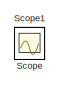
[diagram: root canvas - part 1/2, top left region]
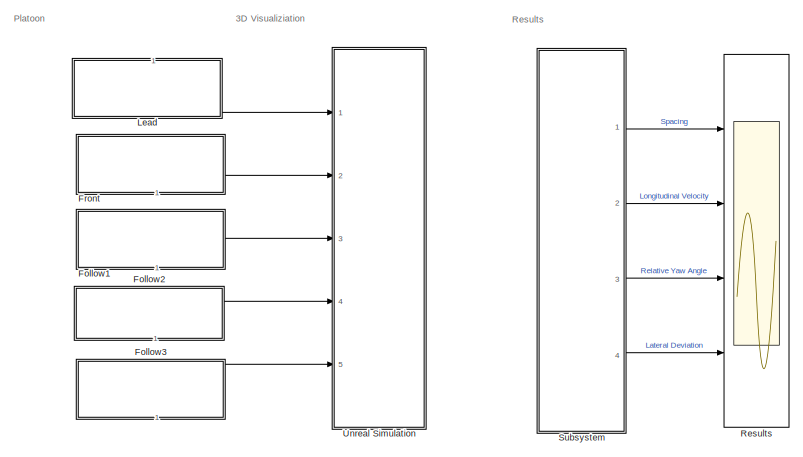
[diagram: root canvas - part 2/2, bottom right region]
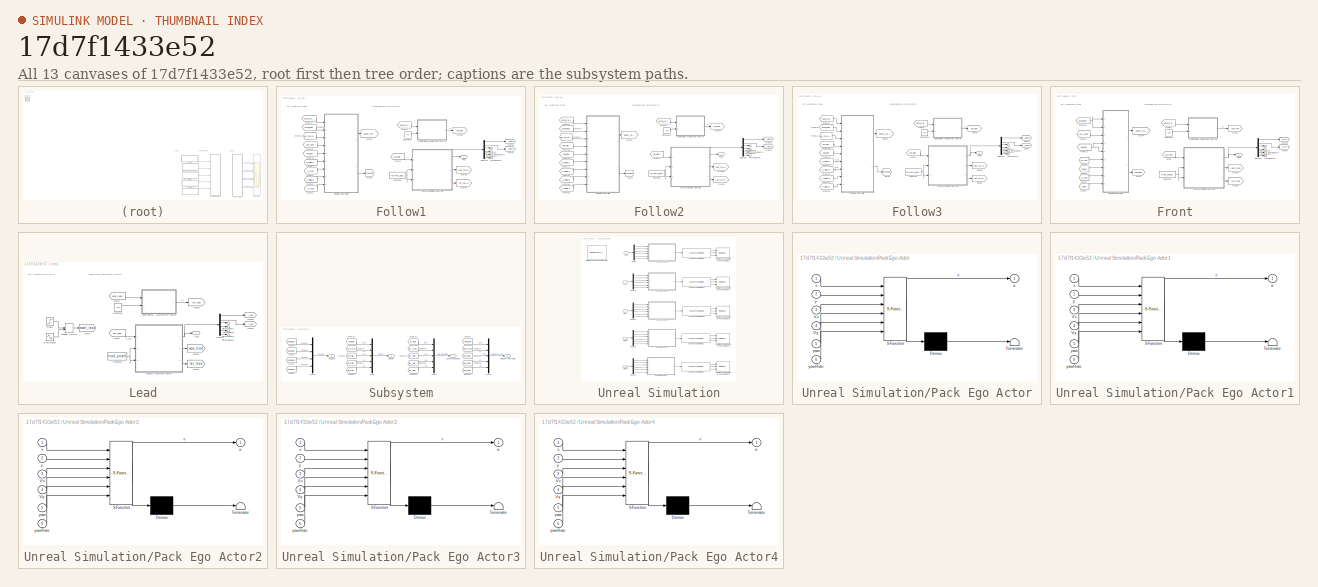
[diagram: thumbnail index - all 13 canvases of the model, root first then tree order]
MODEL slx_17d7f1433e52
KIND model
CONFIG AbsTol = auto
CONFIG EnableMultiTasking = off
CONFIG FixedStep = auto
CONFIG MaxStep = auto
CONFIG MinStep = auto
CONFIG RelTol = 1e-3
CONFIG SampleTimeConstraint = Unconstrained
CONFIG SolverName = FixedStepAuto
CONFIG StartTime = 0.0
CONFIG StopTime = 14
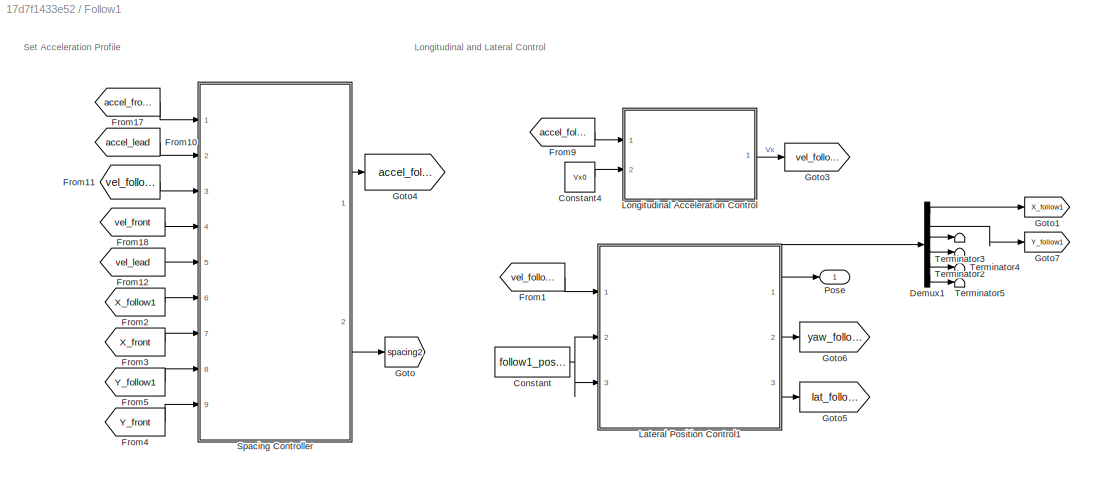
BLOCK [SubSystem] Follow1
  NameLocation = left
  PortSchema = {"entries":[{"content":{"sides":[{"content":{"connectorIds":[]},"type":"ConnectorPlacement.EquallySpacedRectSide","uuid":"e54d76f8-8c49-4840-b6a9-58e08104dcc1"},{"content":{"connectorIds":[],"side":"RIGHT"},"type":"ConnectorPlacement.EquallySpacedRectSide","uuid":"16d97aed-590d-4da6-9d09-35159b7cd9d4"},{"content":{"connectorIds":["Out1"],"side":"TOP"},"type":"ConnectorPlacement.EquallySpacedRectSi...<+235ch>  <repeated x4 — deduplicated; at blocks: Follow1, Follow3, Front, Lead>
  Ports = [0, 1]
  RequestExecContextInheritance = off
BLOCK [Constant] Follow1/Constant
  Value = follow1_pose0
BLOCK [Constant] Follow1/Constant4
  Value = Vx0
BLOCK [Demux] Follow1/Demux1
  Outputs = 6
  Ports = [1, 6]
BLOCK [From] Follow1/From1
  GotoTag = vel_follow1
  TagVisibility = global
BLOCK [From] Follow1/From10
  GotoTag = accel_lead
  TagVisibility = global
BLOCK [From] Follow1/From11
  GotoTag = vel_follow1
  TagVisibility = global
BLOCK [From] Follow1/From12
  GotoTag = vel_lead
  TagVisibility = global
BLOCK [From] Follow1/From17
  GotoTag = accel_front
  TagVisibility = global
BLOCK [From] Follow1/From18
  GotoTag = vel_front
  TagVisibility = global
BLOCK [From] Follow1/From2
  GotoTag = X_follow1
  TagVisibility = global
BLOCK [From] Follow1/From3
  GotoTag = X_front
  TagVisibility = global
BLOCK [From] Follow1/From4
  GotoTag = Y_front
  TagVisibility = global
BLOCK [From] Follow1/From5
  GotoTag = Y_follow1
  TagVisibility = global
BLOCK [From] Follow1/From9
  GotoTag = accel_follow1
  TagVisibility = global
BLOCK [Goto] Follow1/Goto
  GotoTag = spacing2
  TagVisibility = global
BLOCK [Goto] Follow1/Goto1
  GotoTag = X_follow1
  TagVisibility = global
BLOCK [Goto] Follow1/Goto3
  GotoTag = vel_follow1
  TagVisibility = global
BLOCK [Goto] Follow1/Goto4
  GotoTag = accel_follow1
  TagVisibility = global
BLOCK [Goto] Follow1/Goto5
  GotoTag = lat_follow1
  TagVisibility = global
BLOCK [Goto] Follow1/Goto6
  GotoTag = yaw_follow1
  TagVisibility = global
BLOCK [Goto] Follow1/Goto7
  GotoTag = Y_follow1
  TagVisibility = global
BLOCK [SubSystem] Follow1/Lateral Position Control1
  PortSchema = {"entries":[{"content":{"sides":[{"content":{"connectorIds":["In1","In2","In3"]},"type":"ConnectorPlacement.EquallySpacedRectSide","uuid":"be29c3cb-f330-4838-b745-538466c19ec8"},{"content":{"connectorIds":["Out1","Out3","Out2"],"side":"RIGHT"},"type":"ConnectorPlacement.EquallySpacedRectSide","uuid":"f85912df-f35d-4388-8854-cabd9b7a9775"},{"content":{"connectorIds":[],"side":"TOP"},"type":"Connect...<+266ch>  <repeated x5 — deduplicated; at blocks: Lateral Position Control1, Lateral Position Control>
  Ports = [3, 3]
  ReferencedSubsystem = Lateral_Position_Control
  RequestExecContextInheritance = off
BLOCK [SubSystem] Follow1/Longitudinal Acceleration Control
  Ports = [2, 1]
  ReferencedSubsystem = Longitudinal_Acceleration_Control
  RequestExecContextInheritance = off
BLOCK [Outport] Follow1/Pose
BLOCK [SubSystem] Follow1/Spacing Controller
  Ports = [9, 2]
  ReferencedSubsystem = spacing_controller
  RequestExecContextInheritance = off
BLOCK [Terminator] Follow1/Terminator2
BLOCK [Terminator] Follow1/Terminator3
BLOCK [Terminator] Follow1/Terminator4
BLOCK [Terminator] Follow1/Terminator5
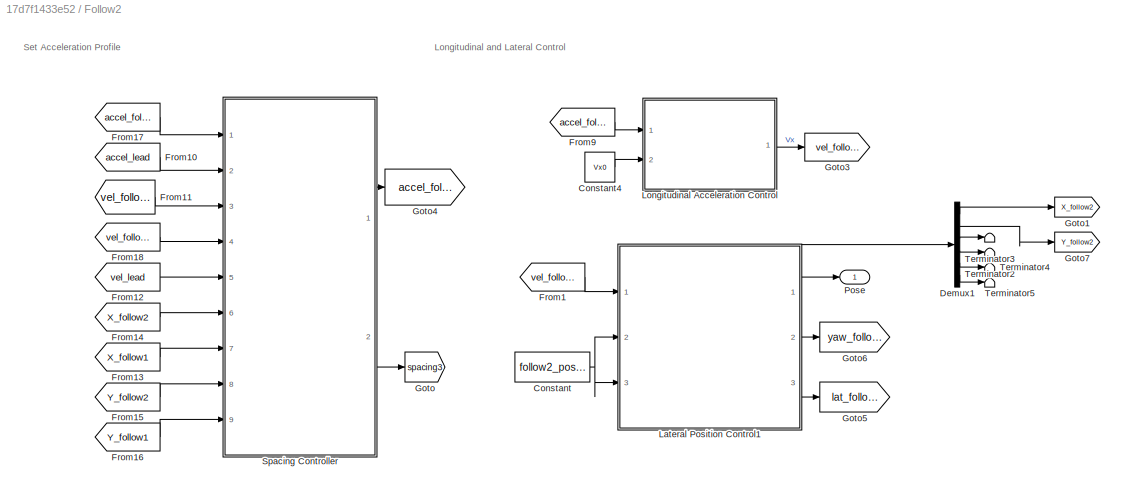
BLOCK [SubSystem] Follow2
  NameLocation = left
  PortSchema = {"entries":[{"content":{"sides":[{"content":{"connectorIds":[]},"type":"ConnectorPlacement.EquallySpacedRectSide","uuid":"06893071-ec21-4ffc-a054-06bfa92a0eac"},{"content":{"connectorIds":[],"side":"RIGHT"},"type":"ConnectorPlacement.EquallySpacedRectSide","uuid":"1cbc90e1-f519-4952-8f8a-3c170042a637"},{"content":{"connectorIds":["Out1"],"side":"TOP"},"type":"ConnectorPlacement.EquallySpacedRectSi...<+235ch>
  Ports = [0, 1]
  RequestExecContextInheritance = off
BLOCK [Constant] Follow2/Constant
  Value = follow2_pose0
BLOCK [Constant] Follow2/Constant4
  Value = Vx0
BLOCK [Demux] Follow2/Demux1
  Outputs = 6
  Ports = [1, 6]
BLOCK [From] Follow2/From1
  GotoTag = vel_follow2
  TagVisibility = global
BLOCK [From] Follow2/From10
  GotoTag = accel_lead
  TagVisibility = global
BLOCK [From] Follow2/From11
  GotoTag = vel_follow2
  TagVisibility = global
BLOCK [From] Follow2/From12
  GotoTag = vel_lead
  TagVisibility = global
BLOCK [From] Follow2/From13
  GotoTag = X_follow1
  TagVisibility = global
BLOCK [From] Follow2/From14
  GotoTag = X_follow2
  TagVisibility = global
BLOCK [From] Follow2/From15
  GotoTag = Y_follow2
  TagVisibility = global
BLOCK [From] Follow2/From16
  GotoTag = Y_follow1
  TagVisibility = global
BLOCK [From] Follow2/From17
  GotoTag = accel_follow1
  TagVisibility = global
BLOCK [From] Follow2/From18
  GotoTag = vel_follow1
  TagVisibility = global
BLOCK [From] Follow2/From9
  GotoTag = accel_follow2
  TagVisibility = global
BLOCK [Goto] Follow2/Goto
  GotoTag = spacing3
  TagVisibility = global
BLOCK [Goto] Follow2/Goto1
  GotoTag = X_follow2
  TagVisibility = global
BLOCK [Goto] Follow2/Goto3
  GotoTag = vel_follow2
  TagVisibility = global
BLOCK [Goto] Follow2/Goto4
  GotoTag = accel_follow2
  TagVisibility = global
BLOCK [Goto] Follow2/Goto5
  GotoTag = lat_follow2
  TagVisibility = global
BLOCK [Goto] Follow2/Goto6
  GotoTag = yaw_follow2
  TagVisibility = global
BLOCK [Goto] Follow2/Goto7
  GotoTag = Y_follow2
  TagVisibility = global
BLOCK [SubSystem] Follow2/Lateral Position Control1
  Ports = [3, 3]
  ReferencedSubsystem = Lateral_Position_Control
  RequestExecContextInheritance = off
BLOCK [SubSystem] Follow2/Longitudinal Acceleration Control
  Ports = [2, 1]
  ReferencedSubsystem = Longitudinal_Acceleration_Control
  RequestExecContextInheritance = off
BLOCK [Outport] Follow2/Pose
BLOCK [SubSystem] Follow2/Spacing Controller
  Ports = [9, 2]
  ReferencedSubsystem = spacing_controller
  RequestExecContextInheritance = off
BLOCK [Terminator] Follow2/Terminator2
BLOCK [Terminator] Follow2/Terminator3
BLOCK [Terminator] Follow2/Terminator4
BLOCK [Terminator] Follow2/Terminator5
BLOCK [SubSystem] Follow3
  NameLocation = left
  Ports = [0, 1]
  RequestExecContextInheritance = off
BLOCK [Constant] Follow3/Constant
  Value = follow3_pose0
BLOCK [Constant] Follow3/Constant4
  Value = Vx0
BLOCK [Demux] Follow3/Demux1
  Outputs = 6
  Ports = [1, 6]
BLOCK [From] Follow3/From1
  GotoTag = vel_follow3
  TagVisibility = global
BLOCK [From] Follow3/From10
  GotoTag = accel_lead
  TagVisibility = global
BLOCK [From] Follow3/From11
  GotoTag = vel_follow3
  TagVisibility = global
BLOCK [From] Follow3/From12
  GotoTag = vel_lead
  TagVisibility = global
BLOCK [From] Follow3/From13
  GotoTag = X_follow2
  TagVisibility = global
BLOCK [From] Follow3/From14
  GotoTag = X_follow3
  TagVisibility = global
BLOCK [From] Follow3/From15
  GotoTag = Y_follow3
  TagVisibility = global
BLOCK [From] Follow3/From16
  GotoTag = Y_follow2
  TagVisibility = global
BLOCK [From] Follow3/From17
  GotoTag = accel_follow2
  TagVisibility = global
BLOCK [From] Follow3/From18
  GotoTag = vel_follow2
  TagVisibility = global
BLOCK [From] Follow3/From9
  GotoTag = accel_follow3
  TagVisibility = global
BLOCK [Goto] Follow3/Goto1
  GotoTag = spacing4
  TagVisibility = global
BLOCK [Goto] Follow3/Goto2
  GotoTag = X_follow3
  TagVisibility = global
BLOCK [Goto] Follow3/Goto3
  GotoTag = vel_follow3
  TagVisibility = global
BLOCK [Goto] Follow3/Goto4
  GotoTag = accel_follow3
  TagVisibility = global
BLOCK [Goto] Follow3/Goto5
  GotoTag = lat_follow3
  TagVisibility = global
BLOCK [Goto] Follow3/Goto6
  GotoTag = yaw_follow3
  TagVisibility = global
BLOCK [Goto] Follow3/Goto7
  GotoTag = Y_follow3
  TagVisibility = global
BLOCK [SubSystem] Follow3/Lateral Position Control1
  Ports = [3, 3]
  ReferencedSubsystem = Lateral_Position_Control
  RequestExecContextInheritance = off
BLOCK [SubSystem] Follow3/Longitudinal Acceleration Control
  Ports = [2, 1]
  ReferencedSubsystem = Longitudinal_Acceleration_Control
  RequestExecContextInheritance = off
BLOCK [Outport] Follow3/Pose
BLOCK [SubSystem] Follow3/Spacing Controller
  Ports = [9, 2]
  ReferencedSubsystem = spacing_controller
  RequestExecContextInheritance = off
BLOCK [Terminator] Follow3/Terminator2
BLOCK [Terminator] Follow3/Terminator3
BLOCK [Terminator] Follow3/Terminator4
BLOCK [Terminator] Follow3/Terminator5
BLOCK [SubSystem] Front
  NameLocation = left
  Ports = [0, 1]
  RequestExecContextInheritance = off
BLOCK [Constant] Front/Constant
  Value = front_pose0
BLOCK [Constant] Front/Constant2
  Value = Vx0
BLOCK [Demux] Front/Demux1
  Outputs = 6
  Ports = [1, 6]
BLOCK [From] Front/From
  GotoTag = vel_front
  TagVisibility = global
BLOCK [From] Front/From1
  GotoTag = Y_front
  TagVisibility = global
BLOCK [From] Front/From10
  GotoTag = accel_lead
  TagVisibility = global
BLOCK [From] Front/From11
  GotoTag = vel_front
  TagVisibility = global
BLOCK [From] Front/From12
  GotoTag = vel_lead
  TagVisibility = global
BLOCK [From] Front/From2
  GotoTag = X_front
  TagVisibility = global
BLOCK [From] Front/From3
  GotoTag = X_lead
  TagVisibility = global
BLOCK [From] Front/From4
  GotoTag = Y_lead
  TagVisibility = global
BLOCK [From] Front/From9
  GotoTag = accel_front
  TagVisibility = global
BLOCK [Goto] Front/Goto
  GotoTag = spacing1
  TagVisibility = global
BLOCK [Goto] Front/Goto2
  GotoTag = X_front
  TagVisibility = global
BLOCK [Goto] Front/Goto3
  GotoTag = vel_front
  TagVisibility = global
BLOCK [Goto] Front/Goto4
  GotoTag = accel_front
  TagVisibility = global
BLOCK [Goto] Front/Goto5
  GotoTag = lat_front
  TagVisibility = global
BLOCK [Goto] Front/Goto6
  GotoTag = yaw_front
  TagVisibility = global
BLOCK [Goto] Front/Goto7
  GotoTag = Y_front
  TagVisibility = global
BLOCK [SubSystem] Front/Lateral Position Control1
  Ports = [3, 3]
  ReferencedSubsystem = Lateral_Position_Control
  RequestExecContextInheritance = off
BLOCK [SubSystem] Front/Longitudinal Acceleration Control1
  Ports = [2, 1]
  ReferencedSubsystem = Longitudinal_Acceleration_Control
  RequestExecContextInheritance = off
BLOCK [Outport] Front/Pose
BLOCK [SubSystem] Front/Spacing Controller
  Ports = [9, 2]
  ReferencedSubsystem = spacing_controller
  RequestExecContextInheritance = off
BLOCK [Terminator] Front/Terminator2
BLOCK [Terminator] Front/Terminator3
BLOCK [Terminator] Front/Terminator4
BLOCK [Terminator] Front/Terminator5
BLOCK [SubSystem] Lead
  NameLocation = left
  Ports = [0, 1]
  RequestExecContextInheritance = off
BLOCK [Outport] Lead/Actor
BLOCK [Constant] Lead/Constant
  Value = lead_pose0
BLOCK [Constant] Lead/Constant4
  Value = Vx0
BLOCK [Demux] Lead/Demux
  Outputs = 6
  Ports = [1, 6]
BLOCK [From] Lead/From1
  GotoTag = vel_lead
  TagVisibility = global
BLOCK [From] Lead/From2
  GotoTag = accel_lead
  TagVisibility = global
BLOCK [Goto] Lead/Goto1
  GotoTag = accel_lead
  TagVisibility = global
BLOCK [Goto] Lead/Goto2
  GotoTag = X_lead
  TagVisibility = global
BLOCK [Goto] Lead/Goto3
  GotoTag = vel_lead
  TagVisibility = global
BLOCK [Goto] Lead/Goto4
  GotoTag = Y_lead
  TagVisibility = global
BLOCK [Goto] Lead/Goto5
  GotoTag = lat_lead
  TagVisibility = global
BLOCK [Goto] Lead/Goto6
  GotoTag = yaw_lead
  TagVisibility = global
BLOCK [SubSystem] Lead/Lateral Position Control
  Ports = [3, 3]
  ReferencedSubsystem = Lateral_Position_Control
  RequestExecContextInheritance = off
BLOCK [SubSystem] Lead/Longitudinal Acceleration Control
  Ports = [2, 1]
  ReferencedSubsystem = Longitudinal_Acceleration_Control
  RequestExecContextInheritance = off
BLOCK [ManualSwitch] Lead/Manual Switch
BLOCK [Sin] Lead/Sine Wave1
  Amplitude = amp
  Ports = [0, 1]
  SampleTime = 0
BLOCK [Step] Lead/Step1
  After = 0
  SampleTime = 0
  Time = 0
BLOCK [Terminator] Lead/Terminator
BLOCK [Terminator] Lead/Terminator1
BLOCK [Terminator] Lead/Terminator2
BLOCK [Terminator] Lead/Terminator3
BLOCK [Scope] Results
  Floating = off
  NumInputPorts = 4
  Ports = [4]
  ScopeSpecificationString = Simulink.scopes.TimeScopeBlockCfg('CurrentConfiguration', extmgr.ConfigurationSet(extmgr.Configuration('Core','General UI',true),extmgr.Configuration('Core','Source UI',true),extmgr.Configuration('Sources','WiredSimulink',true,'DataLoggingVariableName','ScopeData3'),extmgr.Configuration('Visuals','Time Domain',true,'SerializedDisplays',{struct('MinYLimReal','24.19642','MaxYLimReal','30.64484','YLa...<+3873ch>
BLOCK [Scope] Scope
  Floating = off
  IOType = viewer
  NumInputPorts = 1
  Ports = []
  ScopeSpecificationString = Simulink.scopes.TimeScopeBlockCfg('CurrentConfiguration', extmgr.ConfigurationSet(extmgr.Configuration('Core','General UI',true),extmgr.Configuration('Core','Source UI',true),extmgr.Configuration('Sources','WiredSimulink',true,'DataLoggingVariableName','ScopeData1'),extmgr.Configuration('Visuals','Time Domain',true,'SerializedDisplays',{struct('MinYLimReal','-22.5','MaxYLimReal','202.5','YLabelRea...<+1387ch>
BLOCK [Scope] Scope1
  Floating = off
  IOType = viewer
  NumInputPorts = 1
  Ports = []
  ScopeSpecificationString = Simulink.scopes.TimeScopeBlockCfg('CurrentConfiguration', extmgr.ConfigurationSet(extmgr.Configuration('Core','General UI',true),extmgr.Configuration('Core','Source UI',true),extmgr.Configuration('Sources','WiredSimulink',true,'DataLoggingVariableName','ScopeData1'),extmgr.Configuration('Visuals','Time Domain',true,'SerializedDisplays',{struct('MinYLimReal','-0.0000000000000027','MaxYLimReal','0.0...<+1445ch>
BLOCK [SubSystem] Subsystem
  Ports = [0, 4]
  RequestExecContextInheritance = off
BLOCK [From] Subsystem/From1
  GotoTag = spacing2
  TagVisibility = global
BLOCK [From] Subsystem/From10
  GotoTag = yaw_front
  TagVisibility = global
BLOCK [From] Subsystem/From11
  GotoTag = lat_follow1
  TagVisibility = global
BLOCK [From] Subsystem/From12
  GotoTag = yaw_follow1
  TagVisibility = global
BLOCK [From] Subsystem/From13
  GotoTag = vel_lead
  TagVisibility = global
BLOCK [From] Subsystem/From14
  GotoTag = vel_front
  TagVisibility = global
BLOCK [From] Subsystem/From15
  GotoTag = lat_follow2
  TagVisibility = global
BLOCK [From] Subsystem/From16
  GotoTag = yaw_follow2
  TagVisibility = global
BLOCK [From] Subsystem/From17
  GotoTag = yaw_follow3
  TagVisibility = global
BLOCK [From] Subsystem/From18
  GotoTag = lat_follow3
  TagVisibility = global
BLOCK [From] Subsystem/From19
  GotoTag = lat_lead
  TagVisibility = global
BLOCK [From] Subsystem/From2
  GotoTag = spacing3
  TagVisibility = global
BLOCK [From] Subsystem/From3
  GotoTag = vel_follow1
  TagVisibility = global
BLOCK [From] Subsystem/From4
  GotoTag = spacing4
  TagVisibility = global
BLOCK [From] Subsystem/From5
  GotoTag = vel_follow2
  TagVisibility = global
BLOCK [From] Subsystem/From6
  GotoTag = vel_follow3
  TagVisibility = global
BLOCK [From] Subsystem/From7
  GotoTag = lat_front
  TagVisibility = global
BLOCK [From] Subsystem/From8
  GotoTag = spacing1
  TagVisibility = global
BLOCK [From] Subsystem/From9
  GotoTag = yaw_lead
  TagVisibility = global
BLOCK [Outport] Subsystem/Lateral Deviation
  Port = 4
BLOCK [Mux] Subsystem/Mux
  DisplayOption = bar
  Inputs = 5
  Ports = [5, 1]
BLOCK [Mux] Subsystem/Mux1
  DisplayOption = bar
  Ports = [4, 1]
BLOCK [Mux] Subsystem/Mux2
  DisplayOption = bar
  Inputs = 5
  Ports = [5, 1]
BLOCK [Mux] Subsystem/Mux3
  DisplayOption = bar
  Inputs = 5
  Ports = [5, 1]
BLOCK [Outport] Subsystem/Relative Yaw Angle
  Port = 3
BLOCK [Outport] Subsystem/Spacing
BLOCK [Outport] Subsystem/Velocity
  Port = 2
BLOCK [SubSystem] Unreal Simulation
  Ports = [5]
  RequestExecContextInheritance = off
  TreatAsAtomicUnit = on
BLOCK [Reference] Unreal Simulation/Cuboid To 3D Simulation  REF=drivingscenarioandsensors/Cuboid To 3D Simulation
  Ports = [1, 3]
  SourceBlock = drivingscenarioandsensors/Cuboid To 3D Simulation
  SourceProductBaseCode = DR
  SourceType = driving.scenario.internal.CuboidTo3DSimulation
BLOCK [Reference] Unreal Simulation/Cuboid To 3D Simulation1  REF=drivingscenarioandsensors/Cuboid To 3D Simulation
  Ports = [1, 3]
  SourceBlock = drivingscenarioandsensors/Cuboid To 3D Simulation
  SourceProductBaseCode = DR
  SourceType = driving.scenario.internal.CuboidTo3DSimulation
BLOCK [Reference] Unreal Simulation/Cuboid To 3D Simulation2  REF=drivingscenarioandsensors/Cuboid To 3D Simulation
  Ports = [1, 3]
  SourceBlock = drivingscenarioandsensors/Cuboid To 3D Simulation
  SourceProductBaseCode = DR
  SourceType = driving.scenario.internal.CuboidTo3DSimulation
BLOCK [Reference] Unreal Simulation/Cuboid To 3D Simulation3  REF=drivingscenarioandsensors/Cuboid To 3D Simulation
  Ports = [1, 3]
  SourceBlock = drivingscenarioandsensors/Cuboid To 3D Simulation
  SourceProductBaseCode = DR
  SourceType = driving.scenario.internal.CuboidTo3DSimulation
BLOCK [Reference] Unreal Simulation/Cuboid To 3D Simulation4  REF=drivingscenarioandsensors/Cuboid To 3D Simulation
  Ports = [1, 3]
  SourceBlock = drivingscenarioandsensors/Cuboid To 3D Simulation
  SourceProductBaseCode = DR
  SourceType = driving.scenario.internal.CuboidTo3DSimulation
BLOCK [Demux] Unreal Simulation/Demux
  Outputs = 6
  Ports = [1, 6]
BLOCK [Demux] Unreal Simulation/Demux1
  Outputs = 6
  Ports = [1, 6]
BLOCK [Demux] Unreal Simulation/Demux2
  Outputs = 6
  Ports = [1, 6]
BLOCK [Demux] Unreal Simulation/Demux3
  Outputs = 6
  Ports = [1, 6]
BLOCK [Demux] Unreal Simulation/Demux4
  Outputs = 6
  Ports = [1, 6]
BLOCK [SubSystem] Unreal Simulation/Pack Ego Actor
  ErrorFcn = Stateflow.Translate.translate
  PermitHierarchicalResolution = ExplicitOnly
  Ports = [6, 1]
  RequestExecContextInheritance = off
  SFBlockType = MATLAB Function
  TreatAsAtomicUnit = on
BLOCK [Demux] Unreal Simulation/Pack Ego Actor/ Demux 
  Outputs = 1
  Ports = [1, 1]
BLOCK [S-Function] Unreal Simulation/Pack Ego Actor/ SFunction 
  EnableBusSupport = on
  FunctionName = sf_sfun
  PortCounts = [6 2]
  Ports = [6, 2]
  SFcnIsStateOwnerBlock = off
  SFunctionDeploymentMode = off
  Tag = Stateflow S-Function 21
BLOCK [Terminator] Unreal Simulation/Pack Ego Actor/ Terminator 
BLOCK [Inport] Unreal Simulation/Pack Ego Actor/Vx
  Port = 3
BLOCK [Inport] Unreal Simulation/Pack Ego Actor/Vy
  Port = 4
BLOCK [Outport] Unreal Simulation/Pack Ego Actor/a
  VectorParamsAs1DForOutWhenUnconnected = off
BLOCK [Inport] Unreal Simulation/Pack Ego Actor/x
BLOCK [Inport] Unreal Simulation/Pack Ego Actor/y
  Port = 2
BLOCK [Inport] Unreal Simulation/Pack Ego Actor/yaw
  Port = 5
BLOCK [Inport] Unreal Simulation/Pack Ego Actor/yawRate
  Port = 6
BLOCK [SubSystem] Unreal Simulation/Pack Ego Actor1
  ErrorFcn = Stateflow.Translate.translate
  PermitHierarchicalResolution = ExplicitOnly
  Ports = [6, 1]
  RequestExecContextInheritance = off
  SFBlockType = MATLAB Function
  TreatAsAtomicUnit = on
BLOCK [Demux] Unreal Simulation/Pack Ego Actor1/ Demux 
  Outputs = 1
  Ports = [1, 1]
BLOCK [S-Function] Unreal Simulation/Pack Ego Actor1/ SFunction 
  EnableBusSupport = on
  FunctionName = sf_sfun
  PortCounts = [6 2]
  Ports = [6, 2]
  SFcnIsStateOwnerBlock = off
  SFunctionDeploymentMode = off
  Tag = Stateflow S-Function 16
BLOCK [Terminator] Unreal Simulation/Pack Ego Actor1/ Terminator 
BLOCK [Inport] Unreal Simulation/Pack Ego Actor1/Vx
  Port = 3
BLOCK [Inport] Unreal Simulation/Pack Ego Actor1/Vy
  Port = 4
BLOCK [Outport] Unreal Simulation/Pack Ego Actor1/a
  VectorParamsAs1DForOutWhenUnconnected = off
BLOCK [Inport] Unreal Simulation/Pack Ego Actor1/x
BLOCK [Inport] Unreal Simulation/Pack Ego Actor1/y
  Port = 2
BLOCK [Inport] Unreal Simulation/Pack Ego Actor1/yaw
  Port = 5
BLOCK [Inport] Unreal Simulation/Pack Ego Actor1/yawRate
  Port = 6
BLOCK [SubSystem] Unreal Simulation/Pack Ego Actor2
  ErrorFcn = Stateflow.Translate.translate
  PermitHierarchicalResolution = ExplicitOnly
  Ports = [6, 1]
  RequestExecContextInheritance = off
  SFBlockType = MATLAB Function
  TreatAsAtomicUnit = on
BLOCK [Demux] Unreal Simulation/Pack Ego Actor2/ Demux 
  Outputs = 1
  Ports = [1, 1]
BLOCK [S-Function] Unreal Simulation/Pack Ego Actor2/ SFunction 
  EnableBusSupport = on
  FunctionName = sf_sfun
  PortCounts = [6 2]
  Ports = [6, 2]
  SFcnIsStateOwnerBlock = off
  SFunctionDeploymentMode = off
  Tag = Stateflow S-Function 17
BLOCK [Terminator] Unreal Simulation/Pack Ego Actor2/ Terminator 
BLOCK [Inport] Unreal Simulation/Pack Ego Actor2/Vx
  Port = 3
BLOCK [Inport] Unreal Simulation/Pack Ego Actor2/Vy
  Port = 4
BLOCK [Outport] Unreal Simulation/Pack Ego Actor2/a
  VectorParamsAs1DForOutWhenUnconnected = off
BLOCK [Inport] Unreal Simulation/Pack Ego Actor2/x
BLOCK [Inport] Unreal Simulation/Pack Ego Actor2/y
  Port = 2
BLOCK [Inport] Unreal Simulation/Pack Ego Actor2/yaw
  Port = 5
BLOCK [Inport] Unreal Simulation/Pack Ego Actor2/yawRate
  Port = 6
BLOCK [SubSystem] Unreal Simulation/Pack Ego Actor3
  ErrorFcn = Stateflow.Translate.translate
  PermitHierarchicalResolution = ExplicitOnly
  Ports = [6, 1]
  RequestExecContextInheritance = off
  SFBlockType = MATLAB Function
  TreatAsAtomicUnit = on
BLOCK [Demux] Unreal Simulation/Pack Ego Actor3/ Demux 
  Outputs = 1
  Ports = [1, 1]
BLOCK [S-Function] Unreal Simulation/Pack Ego Actor3/ SFunction 
  EnableBusSupport = on
  FunctionName = sf_sfun
  PortCounts = [6 2]
  Ports = [6, 2]
  SFcnIsStateOwnerBlock = off
  SFunctionDeploymentMode = off
  Tag = Stateflow S-Function 18
BLOCK [Terminator] Unreal Simulation/Pack Ego Actor3/ Terminator 
BLOCK [Inport] Unreal Simulation/Pack Ego Actor3/Vx
  Port = 3
BLOCK [Inport] Unreal Simulation/Pack Ego Actor3/Vy
  Port = 4
BLOCK [Outport] Unreal Simulation/Pack Ego Actor3/a
  VectorParamsAs1DForOutWhenUnconnected = off
BLOCK [Inport] Unreal Simulation/Pack Ego Actor3/x
BLOCK [Inport] Unreal Simulation/Pack Ego Actor3/y
  Port = 2
BLOCK [Inport] Unreal Simulation/Pack Ego Actor3/yaw
  Port = 5
BLOCK [Inport] Unreal Simulation/Pack Ego Actor3/yawRate
  Port = 6
BLOCK [SubSystem] Unreal Simulation/Pack Ego Actor4
  ErrorFcn = Stateflow.Translate.translate
  PermitHierarchicalResolution = ExplicitOnly
  Ports = [6, 1]
  RequestExecContextInheritance = off
  SFBlockType = MATLAB Function
  TreatAsAtomicUnit = on
BLOCK [Demux] Unreal Simulation/Pack Ego Actor4/ Demux 
  Outputs = 1
  Ports = [1, 1]
BLOCK [S-Function] Unreal Simulation/Pack Ego Actor4/ SFunction 
  EnableBusSupport = on
  FunctionName = sf_sfun
  PortCounts = [6 2]
  Ports = [6, 2]
  SFcnIsStateOwnerBlock = off
  SFunctionDeploymentMode = off
  Tag = Stateflow S-Function 19
BLOCK [Terminator] Unreal Simulation/Pack Ego Actor4/ Terminator 
BLOCK [Inport] Unreal Simulation/Pack Ego Actor4/Vx
  Port = 3
BLOCK [Inport] Unreal Simulation/Pack Ego Actor4/Vy
  Port = 4
BLOCK [Outport] Unreal Simulation/Pack Ego Actor4/a
  VectorParamsAs1DForOutWhenUnconnected = off
BLOCK [Inport] Unreal Simulation/Pack Ego Actor4/x
BLOCK [Inport] Unreal Simulation/Pack Ego Actor4/y
  Port = 2
BLOCK [Inport] Unreal Simulation/Pack Ego Actor4/yaw
  Port = 5
BLOCK [Inport] Unreal Simulation/Pack Ego Actor4/yawRate
  Port = 6
BLOCK [Reference] Unreal Simulation/Simulation 3D Scene Configuration  REF=sim3dlib/Simulation 3D Scene Configuration
  AttributesFormatString = -------------------------------------\nSceneName = %<SceneDesc>\nPriority = %<Priority>
  Ports = []
  Priority = 0
  SourceBlock = sim3dlib/Simulation 3D Scene Configuration
  SourceProductBaseCode = AE,DR,UV,VE
  SourceType = Simulation 3D Scene Configuration
BLOCK [Reference] Unreal Simulation/Simulation 3D Vehicle with Ground Following  REF=sim3dautolib/Simulation 3D Vehicle with Ground Following
  Ports = [3]
  Priority = -1
  SourceBlock = sim3dautolib/Simulation 3D Vehicle with Ground Following
  SourceProductBaseCode = AE,DR,UV,VE
  SourceType = Simulation 3D Vehicle with Ground Following
BLOCK [Reference] Unreal Simulation/Simulation 3D Vehicle with Ground Following1  REF=sim3dautolib/Simulation 3D Vehicle with Ground Following
  Ports = [3]
  Priority = -1
  SourceBlock = sim3dautolib/Simulation 3D Vehicle with Ground Following
  SourceProductBaseCode = AE,DR,UV,VE
  SourceType = Simulation 3D Vehicle with Ground Following
BLOCK [Reference] Unreal Simulation/Simulation 3D Vehicle with Ground Following2  REF=sim3dautolib/Simulation 3D Vehicle with Ground Following
  Ports = [3]
  Priority = -1
  SourceBlock = sim3dautolib/Simulation 3D Vehicle with Ground Following
  SourceProductBaseCode = AE,DR,UV,VE
  SourceType = Simulation 3D Vehicle with Ground Following
BLOCK [Reference] Unreal Simulation/Simulation 3D Vehicle with Ground Following3  REF=sim3dautolib/Simulation 3D Vehicle with Ground Following
  Ports = [3]
  Priority = -1
  SourceBlock = sim3dautolib/Simulation 3D Vehicle with Ground Following
  SourceProductBaseCode = AE,DR,UV,VE
  SourceType = Simulation 3D Vehicle with Ground Following
BLOCK [Reference] Unreal Simulation/Simulation 3D Vehicle with Ground Following4  REF=sim3dautolib/Simulation 3D Vehicle with Ground Following
  Ports = [3]
  Priority = -1
  SourceBlock = sim3dautolib/Simulation 3D Vehicle with Ground Following
  SourceProductBaseCode = AE,DR,UV,VE
  SourceType = Simulation 3D Vehicle with Ground Following
BLOCK [Inport] Unreal Simulation/follow1
  Port = 3
BLOCK [Inport] Unreal Simulation/follow2
  Port = 4
BLOCK [Inport] Unreal Simulation/follow3
  Port = 5
BLOCK [Inport] Unreal Simulation/front
  Port = 2
BLOCK [Inport] Unreal Simulation/lead
ANNOTATION (root): 3D Visualiziation
ANNOTATION (root): Platoon
ANNOTATION (root): Results
ANNOTATION Follow1: Longitudinal and Lateral Control
ANNOTATION Follow1: Set Acceleration Profile
ANNOTATION Follow2: Longitudinal and Lateral Control
ANNOTATION Follow2: Set Acceleration Profile
ANNOTATION Follow3: Longitudinal and Lateral Control
ANNOTATION Follow3: Set Acceleration Profile
ANNOTATION Front: Longitudinal and Lateral Control
ANNOTATION Front: Set Acceleration Profile
ANNOTATION Lead: Longitudinal and Lateral Control
ANNOTATION Lead: Set Acceleration Profile
LINE Follow1/Constant4:1 -> Follow1/Longitudinal Acceleration Control:2
NET Follow1/Constant:1 -> Follow1/Lateral Position Control1:2, Follow1/Lateral Position Control1:3
LINE Follow1/Demux1:1 -> Follow1/Goto1:1
LINE Follow1/Demux1:2 -> Follow1/Goto7:1
LINE Follow1/Demux1:3 -> Follow1/Terminator3:1
LINE Follow1/Demux1:4 -> Follow1/Terminator2:1
LINE Follow1/Demux1:5 -> Follow1/Terminator4:1
LINE Follow1/Demux1:6 -> Follow1/Terminator5:1
LINE Follow1/From10:1 -> Follow1/Spacing Controller:2
LINE Follow1/From11:1 -> Follow1/Spacing Controller:3
LINE Follow1/From12:1 -> Follow1/Spacing Controller:5
LINE Follow1/From17:1 -> Follow1/Spacing Controller:1
LINE Follow1/From18:1 -> Follow1/Spacing Controller:4
LINE Follow1/From1:1 -> Follow1/Lateral Position Control1:1
LINE Follow1/From2:1 -> Follow1/Spacing Controller:6
LINE Follow1/From3:1 -> Follow1/Spacing Controller:7
LINE Follow1/From4:1 -> Follow1/Spacing Controller:9
LINE Follow1/From5:1 -> Follow1/Spacing Controller:8
LINE Follow1/From9:1 -> Follow1/Longitudinal Acceleration Control:1
NET Follow1/Lateral Position Control1:1 -> Follow1/Demux1:1, Follow1/Pose:1
LINE Follow1/Lateral Position Control1:2 -> Follow1/Goto5:1
LINE Follow1/Lateral Position Control1:3 -> Follow1/Goto6:1
LINE Follow1/Longitudinal Acceleration Control:1 -> Follow1/Goto3:1
LINE Follow1/Spacing Controller:1 -> Follow1/Goto4:1
LINE Follow1/Spacing Controller:2 -> Follow1/Goto:1
LINE Follow1:1 -> Unreal Simulation:3
LINE Follow2/Constant4:1 -> Follow2/Longitudinal Acceleration Control:2
NET Follow2/Constant:1 -> Follow2/Lateral Position Control1:2, Follow2/Lateral Position Control1:3
LINE Follow2/Demux1:1 -> Follow2/Goto1:1
LINE Follow2/Demux1:2 -> Follow2/Goto7:1
LINE Follow2/Demux1:3 -> Follow2/Terminator3:1
LINE Follow2/Demux1:4 -> Follow2/Terminator2:1
LINE Follow2/Demux1:5 -> Follow2/Terminator4:1
LINE Follow2/Demux1:6 -> Follow2/Terminator5:1
LINE Follow2/From10:1 -> Follow2/Spacing Controller:2
LINE Follow2/From11:1 -> Follow2/Spacing Controller:3
LINE Follow2/From12:1 -> Follow2/Spacing Controller:5
LINE Follow2/From13:1 -> Follow2/Spacing Controller:7
LINE Follow2/From14:1 -> Follow2/Spacing Controller:6
LINE Follow2/From15:1 -> Follow2/Spacing Controller:8
LINE Follow2/From16:1 -> Follow2/Spacing Controller:9
LINE Follow2/From17:1 -> Follow2/Spacing Controller:1
LINE Follow2/From18:1 -> Follow2/Spacing Controller:4
LINE Follow2/From1:1 -> Follow2/Lateral Position Control1:1
LINE Follow2/From9:1 -> Follow2/Longitudinal Acceleration Control:1
NET Follow2/Lateral Position Control1:1 -> Follow2/Demux1:1, Follow2/Pose:1
LINE Follow2/Lateral Position Control1:2 -> Follow2/Goto5:1
LINE Follow2/Lateral Position Control1:3 -> Follow2/Goto6:1
LINE Follow2/Longitudinal Acceleration Control:1 -> Follow2/Goto3:1
LINE Follow2/Spacing Controller:1 -> Follow2/Goto4:1
LINE Follow2/Spacing Controller:2 -> Follow2/Goto:1
LINE Follow2:1 -> Unreal Simulation:4
LINE Follow3/Constant4:1 -> Follow3/Longitudinal Acceleration Control:2
NET Follow3/Constant:1 -> Follow3/Lateral Position Control1:2, Follow3/Lateral Position Control1:3
LINE Follow3/Demux1:1 -> Follow3/Goto2:1
LINE Follow3/Demux1:2 -> Follow3/Goto7:1
LINE Follow3/Demux1:3 -> Follow3/Terminator3:1
LINE Follow3/Demux1:4 -> Follow3/Terminator2:1
LINE Follow3/Demux1:5 -> Follow3/Terminator4:1
LINE Follow3/Demux1:6 -> Follow3/Terminator5:1
LINE Follow3/From10:1 -> Follow3/Spacing Controller:2
LINE Follow3/From11:1 -> Follow3/Spacing Controller:3
LINE Follow3/From12:1 -> Follow3/Spacing Controller:5
LINE Follow3/From13:1 -> Follow3/Spacing Controller:7
LINE Follow3/From14:1 -> Follow3/Spacing Controller:6
LINE Follow3/From15:1 -> Follow3/Spacing Controller:8
LINE Follow3/From16:1 -> Follow3/Spacing Controller:9
LINE Follow3/From17:1 -> Follow3/Spacing Controller:1
LINE Follow3/From18:1 -> Follow3/Spacing Controller:4
LINE Follow3/From1:1 -> Follow3/Lateral Position Control1:1
LINE Follow3/From9:1 -> Follow3/Longitudinal Acceleration Control:1
NET Follow3/Lateral Position Control1:1 -> Follow3/Demux1:1, Follow3/Pose:1
LINE Follow3/Lateral Position Control1:2 -> Follow3/Goto5:1
LINE Follow3/Lateral Position Control1:3 -> Follow3/Goto6:1
LINE Follow3/Longitudinal Acceleration Control:1 -> Follow3/Goto3:1
LINE Follow3/Spacing Controller:1 -> Follow3/Goto4:1
LINE Follow3/Spacing Controller:2 -> Follow3/Goto1:1
LINE Follow3:1 -> Unreal Simulation:5
LINE Front/Constant2:1 -> Front/Longitudinal Acceleration Control1:2
NET Front/Constant:1 -> Front/Lateral Position Control1:2, Front/Lateral Position Control1:3
LINE Front/Demux1:1 -> Front/Goto2:1
LINE Front/Demux1:2 -> Front/Goto7:1
LINE Front/Demux1:3 -> Front/Terminator3:1
LINE Front/Demux1:4 -> Front/Terminator2:1
LINE Front/Demux1:5 -> Front/Terminator4:1
LINE Front/Demux1:6 -> Front/Terminator5:1
NET Front/From10:1 -> Front/Spacing Controller:1, Front/Spacing Controller:2
LINE Front/From11:1 -> Front/Spacing Controller:3
NET Front/From12:1 -> Front/Spacing Controller:4, Front/Spacing Controller:5
LINE Front/From1:1 -> Front/Spacing Controller:8
LINE Front/From2:1 -> Front/Spacing Controller:6
LINE Front/From3:1 -> Front/Spacing Controller:7
LINE Front/From4:1 -> Front/Spacing Controller:9
LINE Front/From9:1 -> Front/Longitudinal Acceleration Control1:1
LINE Front/From:1 -> Front/Lateral Position Control1:1
NET Front/Lateral Position Control1:1 -> Front/Demux1:1, Front/Pose:1
LINE Front/Lateral Position Control1:2 -> Front/Goto5:1
LINE Front/Lateral Position Control1:3 -> Front/Goto6:1
LINE Front/Longitudinal Acceleration Control1:1 -> Front/Goto3:1
LINE Front/Spacing Controller:1 -> Front/Goto4:1
LINE Front/Spacing Controller:2 -> Front/Goto:1
LINE Front:1 -> Unreal Simulation:2
LINE Lead/Constant4:1 -> Lead/Longitudinal Acceleration Control:2
NET Lead/Constant:1 -> Lead/Lateral Position Control:2, Lead/Lateral Position Control:3
LINE Lead/Demux:1 -> Lead/Goto2:1
LINE Lead/Demux:2 -> Lead/Goto4:1
LINE Lead/Demux:3 -> Lead/Terminator1:1
LINE Lead/Demux:4 -> Lead/Terminator:1
LINE Lead/Demux:5 -> Lead/Terminator2:1
LINE Lead/Demux:6 -> Lead/Terminator3:1
LINE Lead/From1:1 -> Lead/Lateral Position Control:1
LINE Lead/From2:1 -> Lead/Longitudinal Acceleration Control:1
NET Lead/Lateral Position Control:1 -> Lead/Actor:1, Lead/Demux:1
LINE Lead/Lateral Position Control:2 -> Lead/Goto5:1
LINE Lead/Lateral Position Control:3 -> Lead/Goto6:1
LINE Lead/Longitudinal Acceleration Control:1 -> Lead/Goto3:1
LINE Lead/Manual Switch:1 -> Lead/Goto1:1
LINE Lead/Sine Wave1:1 -> Lead/Manual Switch:2
LINE Lead/Step1:1 -> Lead/Manual Switch:1
LINE Lead:1 -> Unreal Simulation:1
LINE Subsystem/From10:1 -> Subsystem/Mux2:2
LINE Subsystem/From11:1 -> Subsystem/Mux3:3
LINE Subsystem/From12:1 -> Subsystem/Mux2:3
LINE Subsystem/From13:1 -> Subsystem/Mux:1
LINE Subsystem/From14:1 -> Subsystem/Mux:2
LINE Subsystem/From15:1 -> Subsystem/Mux3:4
LINE Subsystem/From16:1 -> Subsystem/Mux2:4
LINE Subsystem/From17:1 -> Subsystem/Mux2:5
LINE Subsystem/From18:1 -> Subsystem/Mux3:5
LINE Subsystem/From19:1 -> Subsystem/Mux3:1
LINE Subsystem/From1:1 -> Subsystem/Mux1:2
LINE Subsystem/From2:1 -> Subsystem/Mux1:3
LINE Subsystem/From3:1 -> Subsystem/Mux:3
LINE Subsystem/From4:1 -> Subsystem/Mux1:4
LINE Subsystem/From5:1 -> Subsystem/Mux:4
LINE Subsystem/From6:1 -> Subsystem/Mux:5
LINE Subsystem/From7:1 -> Subsystem/Mux3:2
LINE Subsystem/From8:1 -> Subsystem/Mux1:1
LINE Subsystem/From9:1 -> Subsystem/Mux2:1
LINE Subsystem/Mux1:1 -> Subsystem/Spacing:1
LINE Subsystem/Mux2:1 -> Subsystem/Relative Yaw Angle:1
LINE Subsystem/Mux3:1 -> Subsystem/Lateral Deviation:1
LINE Subsystem/Mux:1 -> Subsystem/Velocity:1
LINE Subsystem:1 -> Results:1
LINE Subsystem:2 -> Results:2
LINE Subsystem:3 -> Results:3
LINE Subsystem:4 -> Results:4
LINE Unreal Simulation/Cuboid To 3D Simulation1:1 -> Unreal Simulation/Simulation 3D Vehicle with Ground Following1:1
LINE Unreal Simulation/Cuboid To 3D Simulation1:2 -> Unreal Simulation/Simulation 3D Vehicle with Ground Following1:2
LINE Unreal Simulation/Cuboid To 3D Simulation1:3 -> Unreal Simulation/Simulation 3D Vehicle with Ground Following1:3
LINE Unreal Simulation/Cuboid To 3D Simulation2:1 -> Unreal Simulation/Simulation 3D Vehicle with Ground Following2:1
LINE Unreal Simulation/Cuboid To 3D Simulation2:2 -> Unreal Simulation/Simulation 3D Vehicle with Ground Following2:2
LINE Unreal Simulation/Cuboid To 3D Simulation2:3 -> Unreal Simulation/Simulation 3D Vehicle with Ground Following2:3
LINE Unreal Simulation/Cuboid To 3D Simulation3:1 -> Unreal Simulation/Simulation 3D Vehicle with Ground Following3:1
LINE Unreal Simulation/Cuboid To 3D Simulation3:2 -> Unreal Simulation/Simulation 3D Vehicle with Ground Following3:2
LINE Unreal Simulation/Cuboid To 3D Simulation3:3 -> Unreal Simulation/Simulation 3D Vehicle with Ground Following3:3
LINE Unreal Simulation/Cuboid To 3D Simulation4:1 -> Unreal Simulation/Simulation 3D Vehicle with Ground Following4:1
LINE Unreal Simulation/Cuboid To 3D Simulation4:2 -> Unreal Simulation/Simulation 3D Vehicle with Ground Following4:2
LINE Unreal Simulation/Cuboid To 3D Simulation4:3 -> Unreal Simulation/Simulation 3D Vehicle with Ground Following4:3
LINE Unreal Simulation/Cuboid To 3D Simulation:1 -> Unreal Simulation/Simulation 3D Vehicle with Ground Following:1
LINE Unreal Simulation/Cuboid To 3D Simulation:2 -> Unreal Simulation/Simulation 3D Vehicle with Ground Following:2
LINE Unreal Simulation/Cuboid To 3D Simulation:3 -> Unreal Simulation/Simulation 3D Vehicle with Ground Following:3
LINE Unreal Simulation/Demux1:1 -> Unreal Simulation/Pack Ego Actor1:1
LINE Unreal Simulation/Demux1:2 -> Unreal Simulation/Pack Ego Actor1:2
LINE Unreal Simulation/Demux1:3 -> Unreal Simulation/Pack Ego Actor1:3
LINE Unreal Simulation/Demux1:4 -> Unreal Simulation/Pack Ego Actor1:4
LINE Unreal Simulation/Demux1:5 -> Unreal Simulation/Pack Ego Actor1:5
LINE Unreal Simulation/Demux1:6 -> Unreal Simulation/Pack Ego Actor1:6
LINE Unreal Simulation/Demux2:1 -> Unreal Simulation/Pack Ego Actor2:1
LINE Unreal Simulation/Demux2:2 -> Unreal Simulation/Pack Ego Actor2:2
LINE Unreal Simulation/Demux2:3 -> Unreal Simulation/Pack Ego Actor2:3
LINE Unreal Simulation/Demux2:4 -> Unreal Simulation/Pack Ego Actor2:4
LINE Unreal Simulation/Demux2:5 -> Unreal Simulation/Pack Ego Actor2:5
LINE Unreal Simulation/Demux2:6 -> Unreal Simulation/Pack Ego Actor2:6
LINE Unreal Simulation/Demux3:1 -> Unreal Simulation/Pack Ego Actor3:1
LINE Unreal Simulation/Demux3:2 -> Unreal Simulation/Pack Ego Actor3:2
LINE Unreal Simulation/Demux3:3 -> Unreal Simulation/Pack Ego Actor3:3
LINE Unreal Simulation/Demux3:4 -> Unreal Simulation/Pack Ego Actor3:4
LINE Unreal Simulation/Demux3:5 -> Unreal Simulation/Pack Ego Actor3:5
LINE Unreal Simulation/Demux3:6 -> Unreal Simulation/Pack Ego Actor3:6
LINE Unreal Simulation/Demux4:1 -> Unreal Simulation/Pack Ego Actor4:1
LINE Unreal Simulation/Demux4:2 -> Unreal Simulation/Pack Ego Actor4:2
LINE Unreal Simulation/Demux4:3 -> Unreal Simulation/Pack Ego Actor4:3
LINE Unreal Simulation/Demux4:4 -> Unreal Simulation/Pack Ego Actor4:4
LINE Unreal Simulation/Demux4:5 -> Unreal Simulation/Pack Ego Actor4:5
LINE Unreal Simulation/Demux4:6 -> Unreal Simulation/Pack Ego Actor4:6
LINE Unreal Simulation/Demux:1 -> Unreal Simulation/Pack Ego Actor:1
LINE Unreal Simulation/Demux:2 -> Unreal Simulation/Pack Ego Actor:2
LINE Unreal Simulation/Demux:3 -> Unreal Simulation/Pack Ego Actor:3
LINE Unreal Simulation/Demux:4 -> Unreal Simulation/Pack Ego Actor:4
LINE Unreal Simulation/Demux:5 -> Unreal Simulation/Pack Ego Actor:5
LINE Unreal Simulation/Demux:6 -> Unreal Simulation/Pack Ego Actor:6
LINE Unreal Simulation/Pack Ego Actor1:1 -> Unreal Simulation/Cuboid To 3D Simulation1:1
LINE Unreal Simulation/Pack Ego Actor2:1 -> Unreal Simulation/Cuboid To 3D Simulation2:1
LINE Unreal Simulation/Pack Ego Actor3:1 -> Unreal Simulation/Cuboid To 3D Simulation3:1
LINE Unreal Simulation/Pack Ego Actor4:1 -> Unreal Simulation/Cuboid To 3D Simulation4:1
LINE Unreal Simulation/Pack Ego Actor:1 -> Unreal Simulation/Cuboid To 3D Simulation:1
LINE Unreal Simulation/follow1:1 -> Unreal Simulation/Demux2:1
LINE Unreal Simulation/follow2:1 -> Unreal Simulation/Demux3:1
LINE Unreal Simulation/follow3:1 -> Unreal Simulation/Demux4:1
LINE Unreal Simulation/front:1 -> Unreal Simulation/Demux1:1
LINE Unreal Simulation/lead:1 -> Unreal Simulation/Demux:1
note: NET lines group one-source signal fan-out (src -> all destinations, sorted); 1:1 wires keep LINE
CHART Unreal Simulation/Pack Ego Actor1 states=1 transitions=1
  STATE_LABEL 'eML_blk_kernel()'
  STATE_LABEL "SCRIPT:\nfunction a = packEgo(x,y,Vx,Vy,yaw,yawRate)\n% Pack ego information into a single ego actor bus\n%\n% Important note:\n% Output is a bus of type BusVehiclePose. This bus must match the bus \n% elements expected by Scenario Reader. You can view the \n% bus association using 'Edit Data' in the menu above.\n\na = struct(...\n    'ActorID', 1,...\n    'Position', [x y 0], ...\n    'Velocity', [Vx Vy 0], ...<+101ch>"  <repeated x5 — deduplicated; at blocks: Pack Ego Actor1, Pack Ego Actor2, Pack Ego Actor3, Pack Ego Actor4, Pack Ego Actor>
CHART Unreal Simulation/Pack Ego Actor2 states=1 transitions=1
  STATE_LABEL 'eML_blk_kernel()'
CHART Unreal Simulation/Pack Ego Actor3 states=1 transitions=1
  STATE_LABEL 'eML_blk_kernel()'
CHART Unreal Simulation/Pack Ego Actor4 states=1 transitions=1
  STATE_LABEL 'eML_blk_kernel()'
CHART Unreal Simulation/Pack Ego Actor states=1 transitions=1
  STATE_LABEL 'eML_blk_kernel()'
CHART  states=0 transitions=0
CHART  states=0 transitions=0
CHART  states=0 transitions=0
CHART  states=0 transitions=0
CHART  states=0 transitions=0
